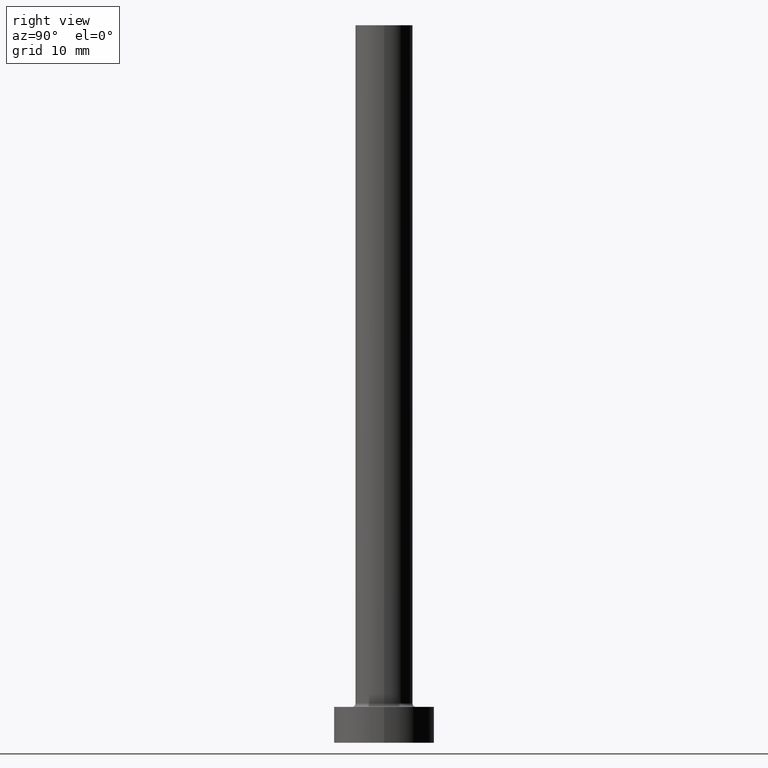
[diagram: clean part render]
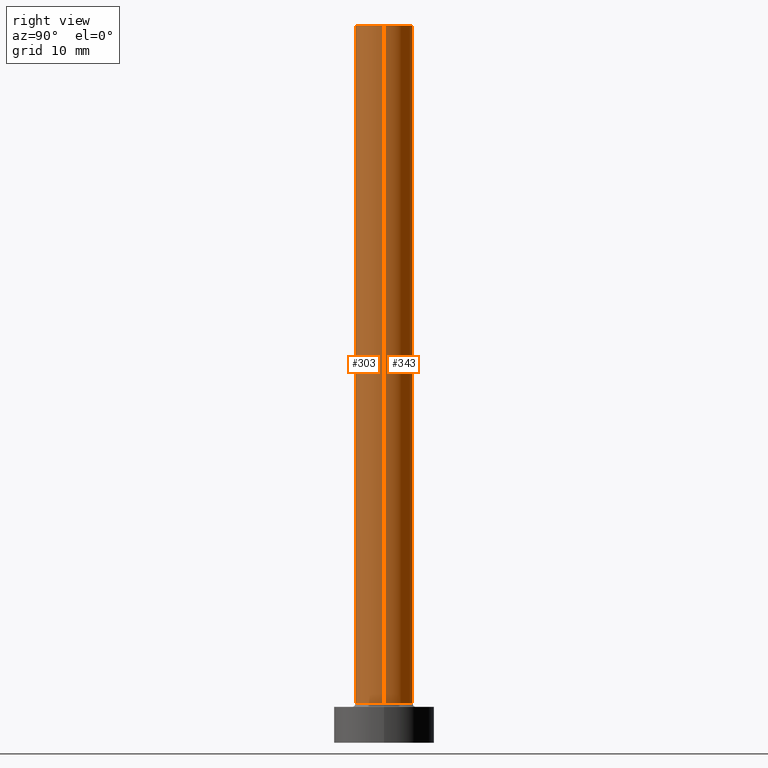
[diagram: same view with one multi-face feature highlighted, each face labeled with its STEP entity id]
A machine part, right view. The highlighted faces form ONE feature: a constant-radius fillet chain: 2 tangent blend faces with common blend radius 4 mm. The faces share edges in the B-rep.
Their STEP definitions:
[1] entity #303 (Cylinder):
#24 = DIRECTION ( 'NONE',  ( 0.000000000000000000, 0.000000000000000000, 1.000000000000000000 ) ) ;
#63 = CARTESIAN_POINT ( 'NONE',  ( 4.000000000000000000, 4.898587196589412829E-16, 5.500000000000005329 ) ) ;
#66 = DIRECTION ( 'NONE',  ( 1.000000000000000000, 0.000000000000000000, 0.000000000000000000 ) ) ;
#68 = VERTEX_POINT ( 'NONE', #63 ) ;
#70 = CARTESIAN_POINT ( 'NONE',  ( 0.000000000000000000, 0.000000000000000000, 100.0000000000000000 ) ) ;
#78 = EDGE_CURVE ( 'NONE', #241, #68, #371, .T. ) ;
#100 = CARTESIAN_POINT ( 'NONE',  ( 4.000000000000000000, 4.898587196589412829E-16, 100.0000000000000000 ) ) ;
#101 = LINE ( 'NONE', #345, #461 ) ;
#121 = EDGE_CURVE ( 'NONE', #430, #68, #342, .T. ) ;
#123 = CIRCLE ( 'NONE', #414, 4.000000000000000000 ) ;
#173 = DIRECTION ( 'NONE',  ( -0.000000000000000000, -0.000000000000000000, -1.000000000000000000 ) ) ;
#177 = EDGE_CURVE ( 'NONE', #280, #241, #123, .T. ) ;
#183 = ORIENTED_EDGE ( 'NONE', *, *, #121, .T. ) ;
#205 = AXIS2_PLACEMENT_3D ( 'NONE', #420, #24, #281 ) ;
#215 = ORIENTED_EDGE ( 'NONE', *, *, #321, .T. ) ;
#222 = VECTOR ( 'NONE', #417, 1000.000000000000000 ) ;
#241 = VERTEX_POINT ( 'NONE', #434 ) ;
#278 = FACE_OUTER_BOUND ( 'NONE', #425, .T. ) ;
#280 = VERTEX_POINT ( 'NONE', #453 ) ;
#281 = DIRECTION ( 'NONE',  ( 1.000000000000000000, 0.000000000000000000, 0.000000000000000000 ) ) ;
#298 = AXIS2_PLACEMENT_3D ( 'NONE', #382, #305, #348 ) ;
#303 = ADVANCED_FACE ( 'NONE', ( #278 ), #443, .T. ) ;
#305 = DIRECTION ( 'NONE',  ( -0.000000000000000000, -0.000000000000000000, -1.000000000000000000 ) ) ;
#317 = ORIENTED_EDGE ( 'NONE', *, *, #177, .F. ) ;
#321 = EDGE_CURVE ( 'NONE', #280, #430, #101, .T. ) ;
#342 = CIRCLE ( 'NONE', #205, 4.000000000000000000 ) ;
#344 = DIRECTION ( 'NONE',  ( 0.000000000000000000, 0.000000000000000000, 1.000000000000000000 ) ) ;
#345 = CARTESIAN_POINT ( 'NONE',  ( -4.000000000000000000, 0.000000000000000000, 100.0000000000000000 ) ) ;
#348 = DIRECTION ( 'NONE',  ( -1.000000000000000000, 0.000000000000000000, 0.000000000000000000 ) ) ;
#371 = LINE ( 'NONE', #100, #222 ) ;
#382 = CARTESIAN_POINT ( 'NONE',  ( 0.000000000000000000, 0.000000000000000000, 100.0000000000000000 ) ) ;
#414 = AXIS2_PLACEMENT_3D ( 'NONE', #70, #344, #66 ) ;
#417 = DIRECTION ( 'NONE',  ( -0.000000000000000000, -0.000000000000000000, -1.000000000000000000 ) ) ;
#420 = CARTESIAN_POINT ( 'NONE',  ( 0.000000000000000000, 0.000000000000000000, 5.500000000000005329 ) ) ;
#425 = EDGE_LOOP ( 'NONE', ( #444, #317, #215, #183 ) ) ;
#430 = VERTEX_POINT ( 'NONE', #431 ) ;
#431 = CARTESIAN_POINT ( 'NONE',  ( -4.000000000000000000, 0.000000000000000000, 5.500000000000005329 ) ) ;
#434 = CARTESIAN_POINT ( 'NONE',  ( 4.000000000000000000, 4.898587196589412829E-16, 100.0000000000000000 ) ) ;
#443 = CYLINDRICAL_SURFACE ( 'NONE', #298, 4.000000000000000000 ) ;
#444 = ORIENTED_EDGE ( 'NONE', *, *, #78, .F. ) ;
#453 = CARTESIAN_POINT ( 'NONE',  ( -4.000000000000000000, 0.000000000000000000, 100.0000000000000000 ) ) ;
#461 = VECTOR ( 'NONE', #173, 1000.000000000000000 ) ;
[2] entity #343 (Cylinder):
#11 = ORIENTED_EDGE ( 'NONE', *, *, #137, .T. ) ;
#63 = CARTESIAN_POINT ( 'NONE',  ( 4.000000000000000000, 4.898587196589412829E-16, 5.500000000000005329 ) ) ;
#68 = VERTEX_POINT ( 'NONE', #63 ) ;
#75 = ORIENTED_EDGE ( 'NONE', *, *, #78, .T. ) ;
#78 = EDGE_CURVE ( 'NONE', #241, #68, #371, .T. ) ;
#100 = CARTESIAN_POINT ( 'NONE',  ( 4.000000000000000000, 4.898587196589412829E-16, 100.0000000000000000 ) ) ;
#101 = LINE ( 'NONE', #345, #461 ) ;
#112 = DIRECTION ( 'NONE',  ( 0.000000000000000000, 0.000000000000000000, 1.000000000000000000 ) ) ;
#137 = EDGE_CURVE ( 'NONE', #68, #430, #220, .T. ) ;
#161 = AXIS2_PLACEMENT_3D ( 'NONE', #429, #112, #396 ) ;
#173 = DIRECTION ( 'NONE',  ( -0.000000000000000000, -0.000000000000000000, -1.000000000000000000 ) ) ;
#204 = CARTESIAN_POINT ( 'NONE',  ( 0.000000000000000000, 0.000000000000000000, 100.0000000000000000 ) ) ;
#206 = DIRECTION ( 'NONE',  ( 0.000000000000000000, 0.000000000000000000, 1.000000000000000000 ) ) ;
#220 = CIRCLE ( 'NONE', #347, 4.000000000000000000 ) ;
#222 = VECTOR ( 'NONE', #417, 1000.000000000000000 ) ;
#238 = DIRECTION ( 'NONE',  ( -1.000000000000000000, 0.000000000000000000, 0.000000000000000000 ) ) ;
#241 = VERTEX_POINT ( 'NONE', #434 ) ;
#244 = DIRECTION ( 'NONE',  ( 1.000000000000000000, 0.000000000000000000, 0.000000000000000000 ) ) ;
#256 = ORIENTED_EDGE ( 'NONE', *, *, #452, .F. ) ;
#273 = DIRECTION ( 'NONE',  ( -0.000000000000000000, -0.000000000000000000, -1.000000000000000000 ) ) ;
#280 = VERTEX_POINT ( 'NONE', #453 ) ;
#304 = CIRCLE ( 'NONE', #161, 4.000000000000000000 ) ;
#321 = EDGE_CURVE ( 'NONE', #280, #430, #101, .T. ) ;
#343 = ADVANCED_FACE ( 'NONE', ( #421 ), #413, .T. ) ;
#345 = CARTESIAN_POINT ( 'NONE',  ( -4.000000000000000000, 0.000000000000000000, 100.0000000000000000 ) ) ;
#347 = AXIS2_PLACEMENT_3D ( 'NONE', #447, #206, #244 ) ;
#371 = LINE ( 'NONE', #100, #222 ) ;
#373 = AXIS2_PLACEMENT_3D ( 'NONE', #204, #273, #238 ) ;
#396 = DIRECTION ( 'NONE',  ( 1.000000000000000000, 0.000000000000000000, 0.000000000000000000 ) ) ;
#400 = ORIENTED_EDGE ( 'NONE', *, *, #321, .F. ) ;
#413 = CYLINDRICAL_SURFACE ( 'NONE', #373, 4.000000000000000000 ) ;
#417 = DIRECTION ( 'NONE',  ( -0.000000000000000000, -0.000000000000000000, -1.000000000000000000 ) ) ;
#421 = FACE_OUTER_BOUND ( 'NONE', #460, .T. ) ;
#429 = CARTESIAN_POINT ( 'NONE',  ( 0.000000000000000000, 0.000000000000000000, 100.0000000000000000 ) ) ;
#430 = VERTEX_POINT ( 'NONE', #431 ) ;
#431 = CARTESIAN_POINT ( 'NONE',  ( -4.000000000000000000, 0.000000000000000000, 5.500000000000005329 ) ) ;
#434 = CARTESIAN_POINT ( 'NONE',  ( 4.000000000000000000, 4.898587196589412829E-16, 100.0000000000000000 ) ) ;
#447 = CARTESIAN_POINT ( 'NONE',  ( 0.000000000000000000, 0.000000000000000000, 5.500000000000005329 ) ) ;
#452 = EDGE_CURVE ( 'NONE', #241, #280, #304, .T. ) ;
#453 = CARTESIAN_POINT ( 'NONE',  ( -4.000000000000000000, 0.000000000000000000, 100.0000000000000000 ) ) ;
#460 = EDGE_LOOP ( 'NONE', ( #256, #75, #11, #400 ) ) ;
#461 = VECTOR ( 'NONE', #173, 1000.000000000000000 ) ;